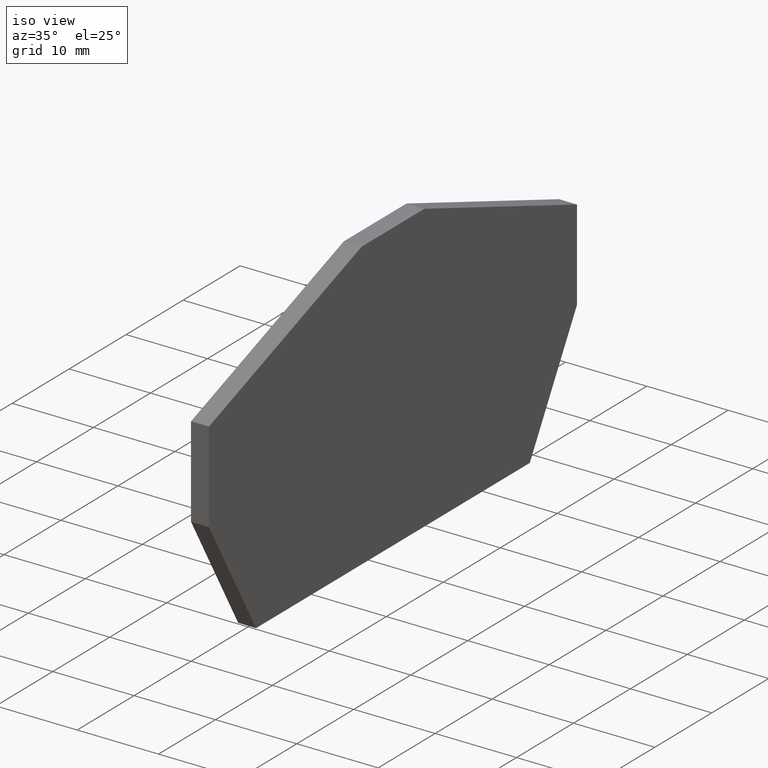
[diagram: clean part render]
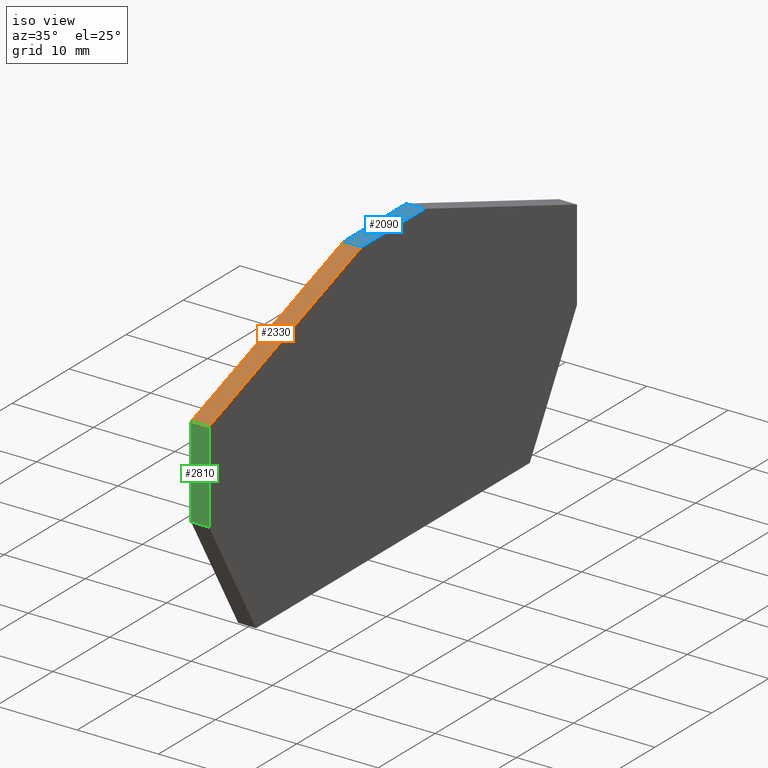
[diagram: same view with three faces highlighted in distinct colors, each labeled with its STEP entity id]
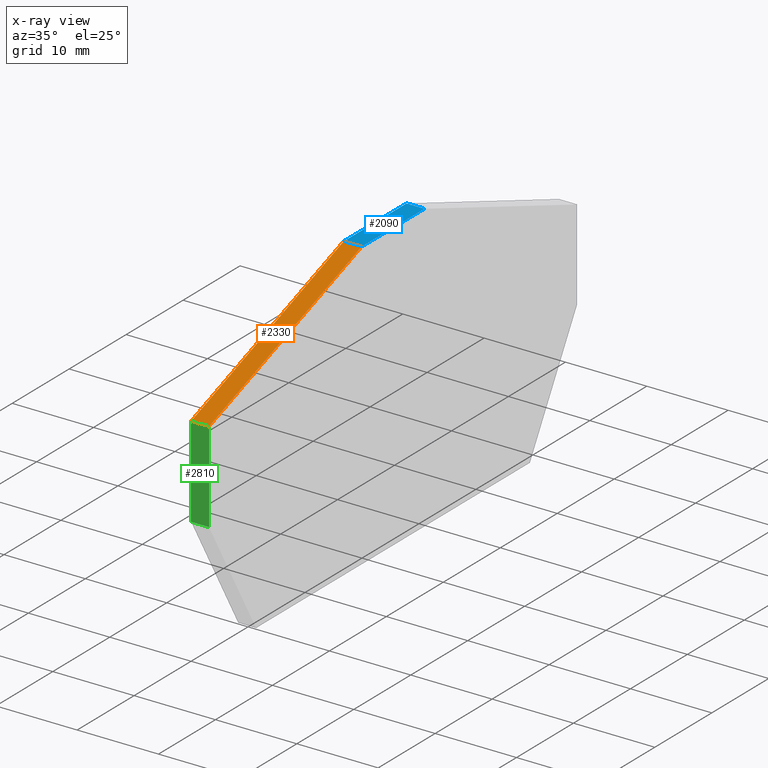
[diagram: x-ray of the same camera — body ghosted, the three highlighted faces saturated]
A machine part, iso view with three faces highlighted in distinct colors.
The next image is the same camera in x-ray (body ghosted, the three faces saturated) — at least one of them is partly hidden behind the body in this view.
Their STEP definitions:

[orange] entity #2330 — the highlighted planar face has unit normal (0, -0.342, 0.9397).
#60=CARTESIAN_POINT('',(0.,-24.9985038184946,45.3200000000001));
#70=DIRECTION('',(0.939692620785981,0.342020143325468,
-2.41473507855972E-15));
#80=VECTOR('',#70,1.);
#90=LINE('',#60,#80);
#100=CARTESIAN_POINT('',(33.9321672216761,-12.6482049656694,
45.3200000000001));
#110=VERTEX_POINT('',#100);
#120=CARTESIAN_POINT('',(60.715140245067,-2.90000000000693,45.32));
#130=VERTEX_POINT('',#120);
#140=EDGE_CURVE('',#110,#130,#90,.T.);
#890=CARTESIAN_POINT('',(33.9321672216761,-12.6482049656694,
43.1200000000001));
#900=VERTEX_POINT('',#890);
#1390=CARTESIAN_POINT('',(60.715140245067,-2.90000000000694,43.12));
#1400=VERTEX_POINT('',#1390);
#1430=CARTESIAN_POINT('',(0.,-24.9985038184946,43.1200000000001));
#1440=DIRECTION('',(0.939692620785981,0.342020143325468,
-2.41473507855972E-15));
#1450=VECTOR('',#1440,1.);
#1460=LINE('',#1430,#1450);
#1470=EDGE_CURVE('',#900,#1400,#1460,.T.);
#1930=CARTESIAN_POINT('',(60.7151402450669,-2.90000000000725,0.));
#1940=DIRECTION('',(-1.98501003465636E-28,7.105427357601E-15,1.));
#1950=VECTOR('',#1940,1.);
#1960=LINE('',#1930,#1950);
#1970=EDGE_CURVE('',#1400,#130,#1960,.T.);
#2170=CARTESIAN_POINT('',(60.5494470824522,-2.96030737922009,45.32));
#2180=DIRECTION('',(-0.342020143325468,0.939692620785981,
-6.67691765546856E-15));
#2190=DIRECTION('',(-0.939692620785981,-0.342020143325468,
2.43019928323521E-15));
#2200=AXIS2_PLACEMENT_3D('',#2170,#2180,#2190);
#2210=PLANE('',#2200);
#2220=CARTESIAN_POINT('',(33.9321672216761,-12.6482049656697,0.));
#2230=DIRECTION('',(-1.99798201336921E-28,7.105427357601E-15,1.));
#2240=VECTOR('',#2230,1.);
#2250=LINE('',#2220,#2240);
#2260=EDGE_CURVE('',#900,#110,#2250,.T.);
#2270=ORIENTED_EDGE('',*,*,#2260,.T.);
#2280=ORIENTED_EDGE('',*,*,#1470,.F.);
#2290=ORIENTED_EDGE('',*,*,#1970,.F.);
#2300=ORIENTED_EDGE('',*,*,#140,.T.);
#2310=EDGE_LOOP('',(#2300,#2290,#2280,#2270));
#2320=FACE_OUTER_BOUND('',#2310,.T.);
#2330=ADVANCED_FACE('',(#2320),#2210,.T.);

[blue] entity #2090 — the highlighted planar face has unit normal (0, -0, 1).
#120=CARTESIAN_POINT('',(60.715140245067,-2.90000000000693,45.32));
#130=VERTEX_POINT('',#120);
#160=CARTESIAN_POINT('',(0.,-2.9000000000013,45.32));
#170=DIRECTION('',(1.,-9.26522781017574E-14,8.58280664880461E-28));
#180=VECTOR('',#170,1.);
#190=LINE('',#160,#180);
#200=CARTESIAN_POINT('',(71.7491941982856,-2.90000000000795,45.32));
#210=VERTEX_POINT('',#200);
#220=EDGE_CURVE('',#130,#210,#190,.T.);
#1310=CARTESIAN_POINT('',(71.7491941982856,-2.90000000000797,43.12));
#1320=VERTEX_POINT('',#1310);
#1350=CARTESIAN_POINT('',(0.,-2.90000000000132,43.12));
#1360=DIRECTION('',(1.,-9.26522781017574E-14,8.58280664880461E-28));
#1370=VECTOR('',#1360,1.);
#1380=LINE('',#1350,#1370);
#1390=CARTESIAN_POINT('',(60.715140245067,-2.90000000000694,43.12));
#1400=VERTEX_POINT('',#1390);
#1410=EDGE_CURVE('',#1400,#1320,#1380,.T.);
#1880=CARTESIAN_POINT('',(71.5728672175785,-2.90000000000793,45.32));
#1890=DIRECTION('',(9.26522781017574E-14,1.,-7.105427357601E-15));
#1900=DIRECTION('',(-1.,9.26522781017574E-14,-8.5749180397524E-28));
#1910=AXIS2_PLACEMENT_3D('',#1880,#1890,#1900);
#1920=PLANE('',#1910);
#1930=CARTESIAN_POINT('',(60.7151402450669,-2.90000000000725,0.));
#1940=DIRECTION('',(-1.98501003465636E-28,7.105427357601E-15,1.));
#1950=VECTOR('',#1940,1.);
#1960=LINE('',#1930,#1950);
#1970=EDGE_CURVE('',#1400,#130,#1960,.T.);
#1980=ORIENTED_EDGE('',*,*,#1970,.T.);
#1990=ORIENTED_EDGE('',*,*,#1410,.F.);
#2000=CARTESIAN_POINT('',(71.7491941982856,-2.90000000000827,0.));
#2010=DIRECTION('',(-1.9835684877888E-28,7.105427357601E-15,1.));
#2020=VECTOR('',#2010,1.);
#2030=LINE('',#2000,#2020);
#2040=EDGE_CURVE('',#1320,#210,#2030,.T.);
#2050=ORIENTED_EDGE('',*,*,#2040,.F.);
#2060=ORIENTED_EDGE('',*,*,#220,.T.);
#2070=EDGE_LOOP('',(#2060,#2050,#1990,#1980));
#2080=FACE_OUTER_BOUND('',#2070,.T.);
#2090=ADVANCED_FACE('',(#2080),#1920,.T.);

[green] entity #2810 — the highlighted planar face has unit normal (0, -1, -0).
#100=CARTESIAN_POINT('',(33.9321672216761,-12.6482049656694,
45.3200000000001));
#110=VERTEX_POINT('',#100);
#600=CARTESIAN_POINT('',(33.9321672216736,-23.8197560553535,
45.3200000000001));
#610=VERTEX_POINT('',#600);
#640=CARTESIAN_POINT('',(33.9321672216789,0.,45.32));
#650=DIRECTION('',(-2.2374468138856E-13,-1.,7.105427357601E-15));
#660=VECTOR('',#650,1.);
#670=LINE('',#640,#660);
#680=EDGE_CURVE('',#110,#610,#670,.T.);
#850=CARTESIAN_POINT('',(33.9321672216789,0.,43.12));
#860=DIRECTION('',(-2.2374468138856E-13,-1.,7.105427357601E-15));
#870=VECTOR('',#860,1.);
#880=LINE('',#850,#870);
#890=CARTESIAN_POINT('',(33.9321672216761,-12.6482049656694,
43.1200000000001));
#900=VERTEX_POINT('',#890);
#910=CARTESIAN_POINT('',(33.9321672216736,-23.8197560553535,
43.1200000000001));
#920=VERTEX_POINT('',#910);
#930=EDGE_CURVE('',#900,#920,#880,.T.);
#2220=CARTESIAN_POINT('',(33.9321672216761,-12.6482049656697,0.));
#2230=DIRECTION('',(-1.99798201336921E-28,7.105427357601E-15,1.));
#2240=VECTOR('',#2230,1.);
#2250=LINE('',#2220,#2240);
#2260=EDGE_CURVE('',#900,#110,#2250,.T.);
#2650=CARTESIAN_POINT('',(33.932167221676,-12.7882464733114,
45.3200000000001));
#2660=DIRECTION('',(-1.,2.2374468138856E-13,-1.78895935266295E-27));
#2670=DIRECTION('',(-2.2374468138856E-13,-1.,7.105427357601E-15));
#2680=AXIS2_PLACEMENT_3D('',#2650,#2660,#2670);
#2690=PLANE('',#2680);
#2700=ORIENTED_EDGE('',*,*,#680,.F.);
#2710=CARTESIAN_POINT('',(33.9321672216736,-23.8197560553538,0.));
#2720=DIRECTION('',(-1.99278912365413E-28,7.105427357601E-15,1.));
#2730=VECTOR('',#2720,1.);
#2740=LINE('',#2710,#2730);
#2750=EDGE_CURVE('',#920,#610,#2740,.T.);
#2760=ORIENTED_EDGE('',*,*,#2750,.T.);
#2770=ORIENTED_EDGE('',*,*,#930,.T.);
#2780=ORIENTED_EDGE('',*,*,#2260,.F.);
#2790=EDGE_LOOP('',(#2780,#2770,#2760,#2700));
#2800=FACE_OUTER_BOUND('',#2790,.T.);
#2810=ADVANCED_FACE('',(#2800),#2690,.T.);